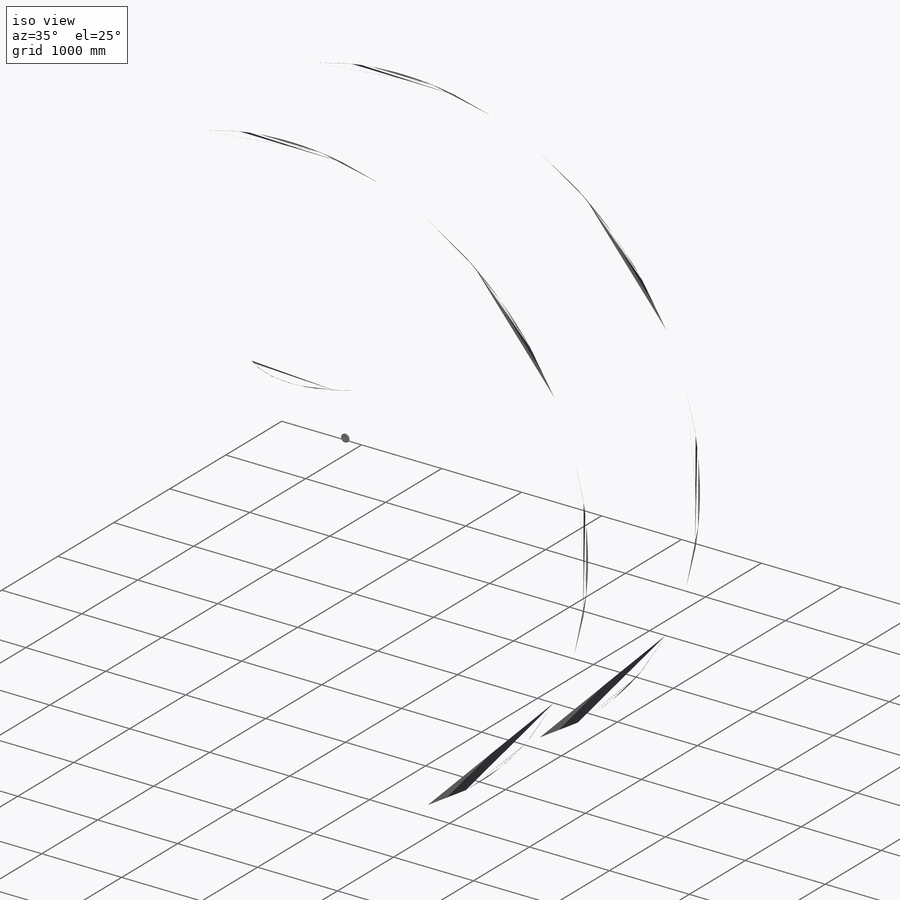
[diagram: iso view]
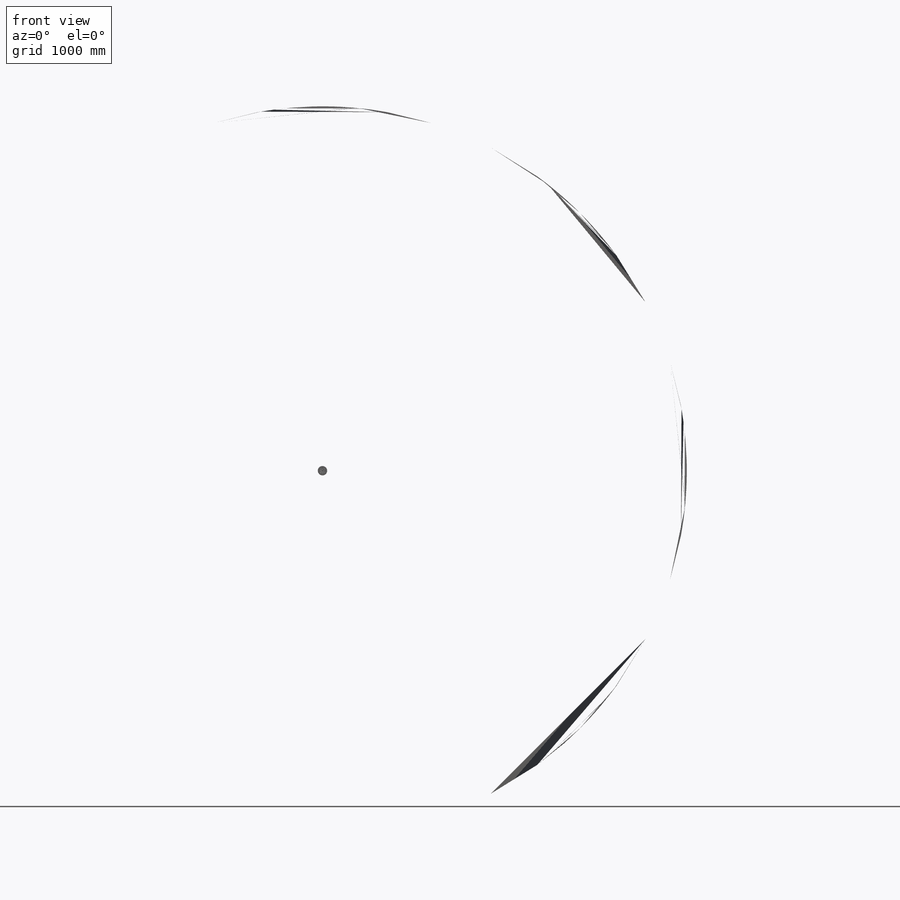
[diagram: front view]
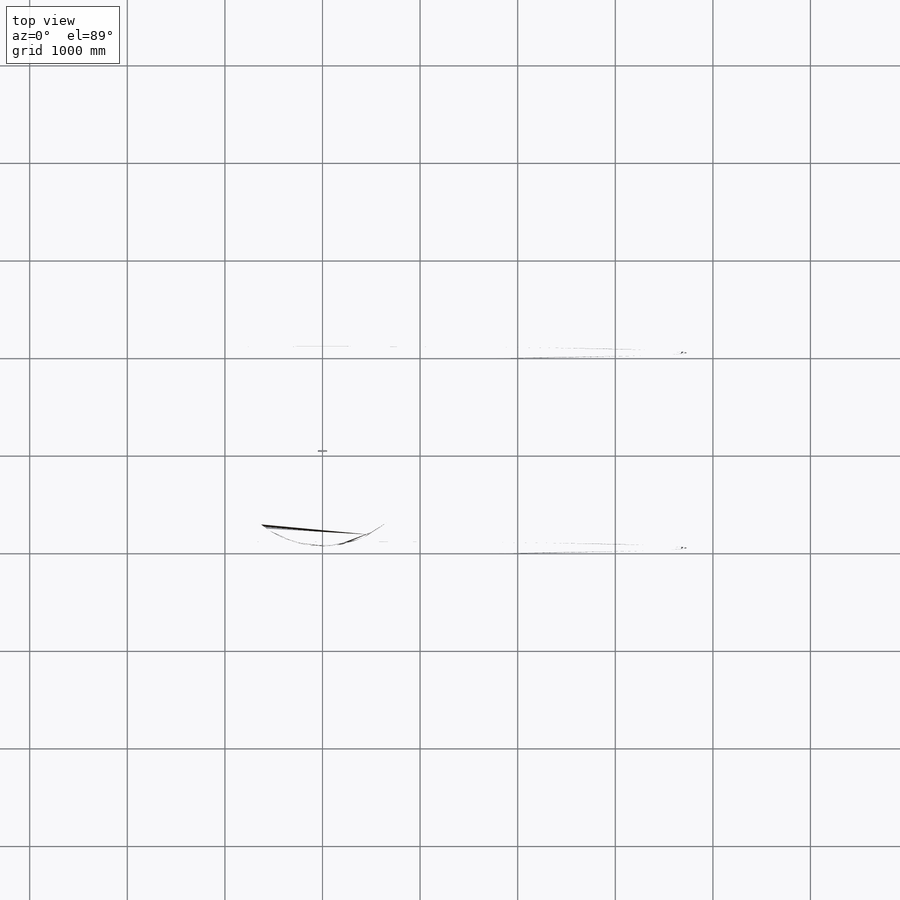
[diagram: top view]
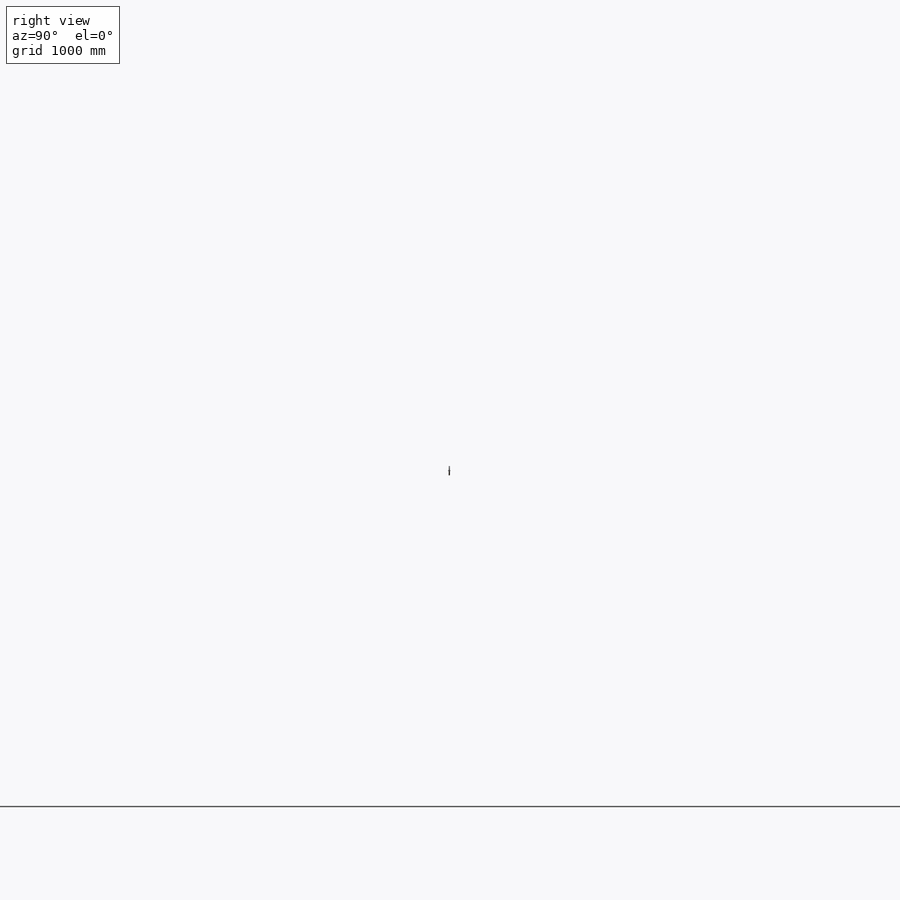
[diagram: right view]
SOLIDWORKS PART (.sldprt)
format: sldprt  version: not decoded by parser v0  size: 1,041,408 bytes
history: native  units: mm
features: sketch x15, material x7, cut_extrude x6, extrude x4, revolve x3, boolean_combine x2, pattern_circular x2, fillet x2, plane x1, chamfer x1, cut_revolve x1, pattern_linear x1 + 5 further entries (+12 scaffold rows collapsed)
feature tree (62):
  scaffold x12  (default folders/planes/origin — collapsed)
  material  "PA Type 6"
  material  "1060 Alloy"
  material  "Plain Carbon Steel"
  material  "PA Type 6"
  material  "PA Type 6"
  material  "Natural Rubber"
  material  "PA Type 6"
  "Cut-List-Item2"
  "Cut-List-Item3"
  "Cut-List-Item4"
  "Cut-List-Item5"
  "Cut-List-Item6"
  sketch  "Sketch4"  dims[D1=4.0mm D2=11.0mm D3=12.0mm D4=7.5mm D5=0.5mm D6=7.1mm D7=20.8mm D8=18.5mm]
  revolve  "Revolve1"  Angle=360deg
  sketch  "Sketch5"  dims[D2=2.5mm D1=5.0mm]
  cut_extrude  "Cut-Extrude1"  [1 undecoded]
  sketch  "Sketch6"  dims[c1.D1=~2.618113mm c1.D2=3.75mm c1.D3=~4.618113mm c1.D4=~6.368113mm c2.D3=~2.618113mm c2.D1=6.6mm]
  cut_extrude  "Cut-Extrude2"  [1 undecoded]
  sketch  "Sketch1"  dims[D1=68.8mm D2=12.0mm]
  extrude  "Boss-Extrude1"  Depth=7.1mm
  plane  "Plane1"  Offset=1.5mm
  sketch  "Sketch7"  dims[D1=3.0mm]
  extrude  "Boss-Extrude3"  Depth=4.6mm
  chamfer  "Chamfer1"  Distance=0.25mm Angle=45deg
  sketch  "Sketch8"  dims[D1=1.5mm]
  cut_extrude  "Cut-Extrude3"  Depth=2mm
  sketch  "Sketch9"  dims[c1.D1=3.0mm c1.D2=3.0mm c1.D3=3.5mm c1.D4=83.8mm c1.D5=~9.190415mm c2.D5=2.0deg c2.D6=14.2mm]
  revolve  "Revolve2"  Angle=360deg
  boolean_combine  "Combine1"
  sketch  "Sketch10"  dims[D1=14.0mm D4=7.0mm D2=2.25mm D3=2.25mm]
  extrude  "Boss-Extrude4"  [1 undecoded]
  pattern_circular  "CirPattern1"  Count=8 Angle=360deg
  boolean_combine  "Combine2"
  sketch  "Sketch12"  dims[D1=6.0mm D2=68.0mm D3=1.5mm]
  cut_revolve  "Cut-Revolve1"  Angle=360deg
  fillet  "Fillet1"  Radius=1mm
  sketch  "Sketch13"  dims[D3=8.5mm D1=16.0mm D2=16.0mm]
  extrude  "Boss-Extrude5"  [1 undecoded]
  sketch  "Sketch14"  dims[D1=4.5mm]
  cut_extrude  "Cut-Extrude4"  [1 undecoded]
  pattern_linear  "LPattern1"  Count1=3 Count2=3 Spacing1=16mm Spacing2=16mm
  sketch  "Sketch15"  dims[c1.D2=76.0mm c1.D1=~52.061564mm c2.D1=45.0deg c2.D3=2.5mm]
  cut_extrude  "Cut-Extrude5"  Depth=2mm
  sketch  "Sketch16"  dims[D1=1.0mm D2=1.0mm D3=1.0mm D4=1.0mm D5=8.0]
  pattern_circular  "CirPattern2"  Count=8 Angle=360deg
  sketch  "Sketch18"  dims[D1=78.0mm D2=81.0mm]
  cut_extrude  "Cut-Extrude6"  Depth=1mm
  sketch  "Sketch20"  dims[D1=3.5mm D2=96.0mm]
  revolve  "Revolve3"  Angle=360deg
  fillet  "Fillet2"  Radius=4mm
decode coverage: 30 of 37 modeling features carry decoded parameters; 5 rows unclassified (native names shown)
note: ~ marks probable driven/reference dimensions
note: 5 parameter values undecoded
summary: no parameter record found for 5 features
note: suppression state not decoded; provenance and decode notes live in map.json
